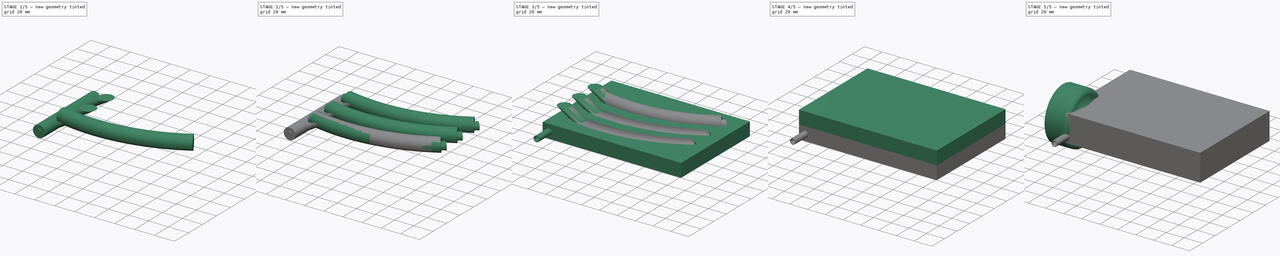
[diagram: build sequence overview — one tinted view per stage of 5, left to right]
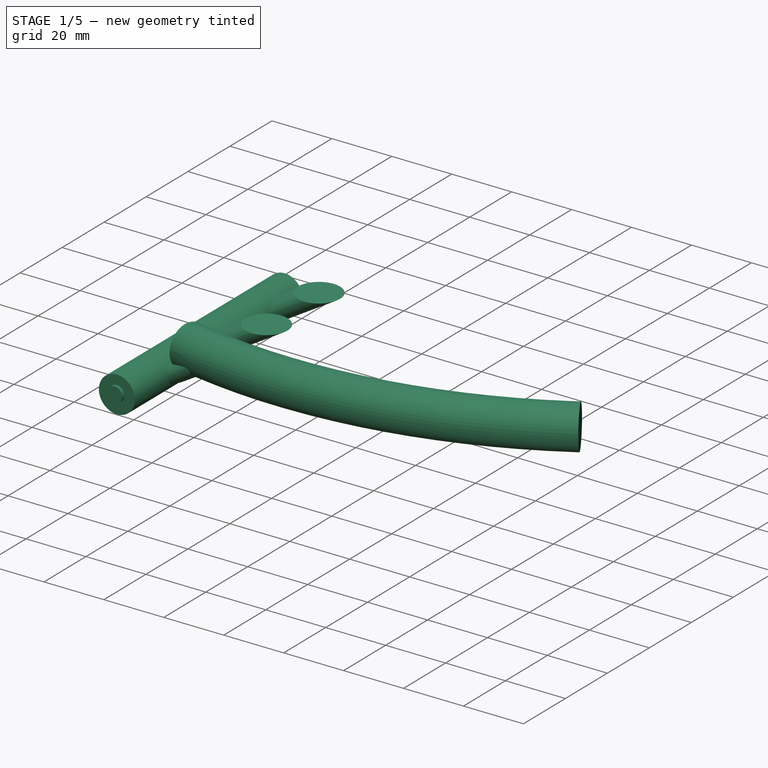
[diagram: stage 1 of 5 — iso view after this stage's code; geometry added in this stage tinted green]
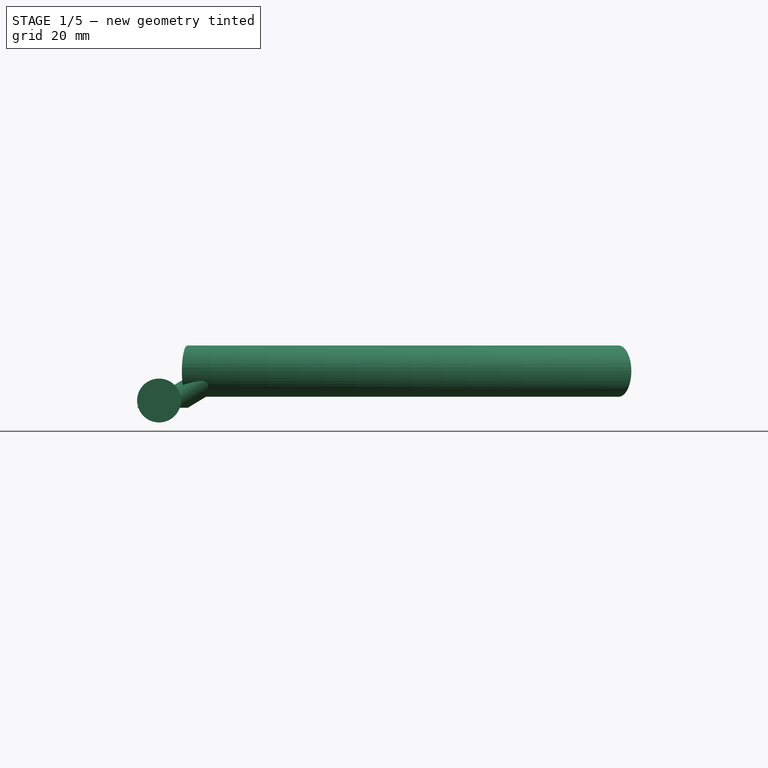
[diagram: stage 1 of 5 — front view after this stage's code; geometry added in this stage tinted green]
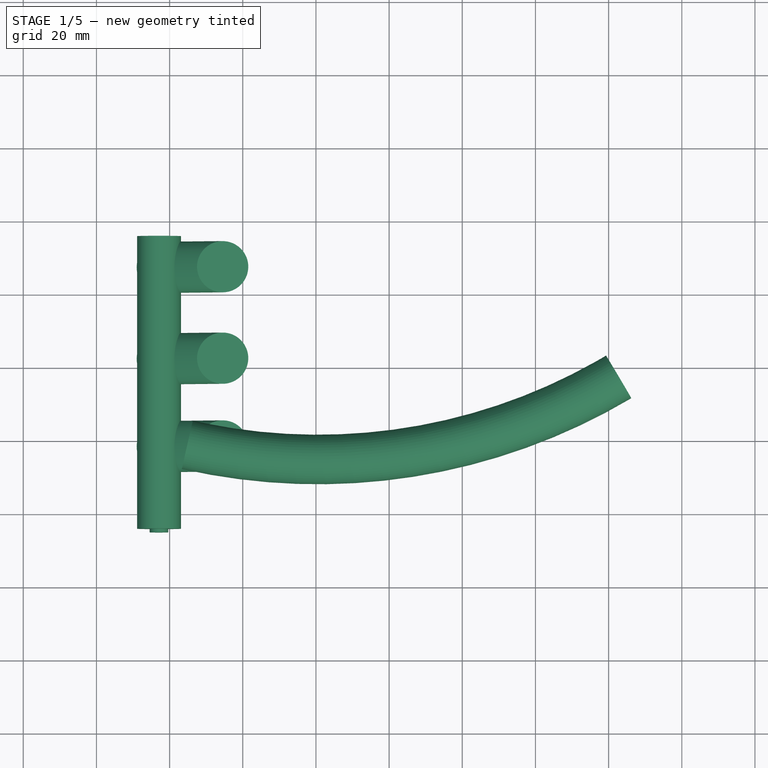
[diagram: stage 1 of 5 — top view after this stage's code; geometry added in this stage tinted green]
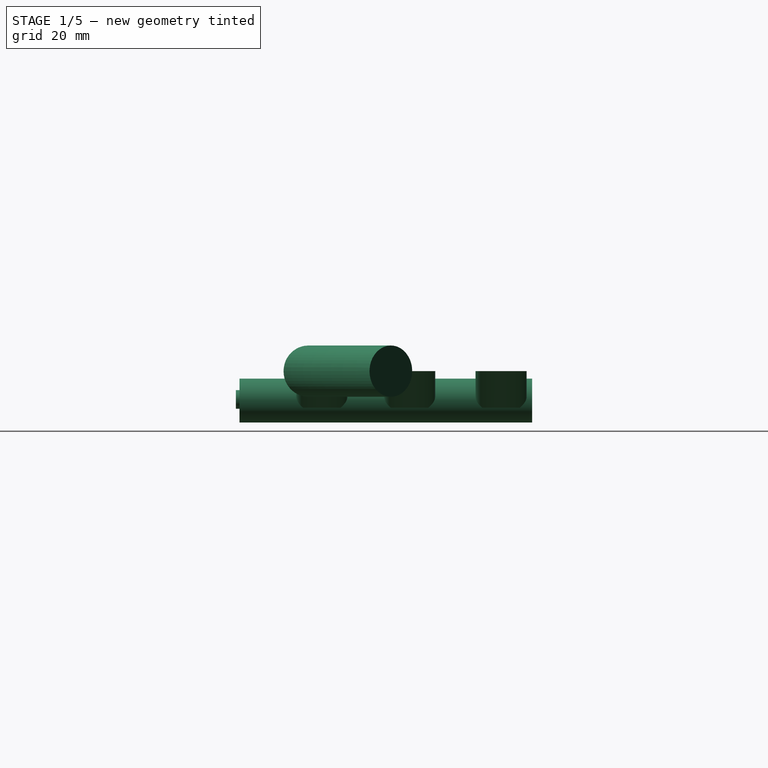
[diagram: stage 1 of 5 — right view after this stage's code; geometry added in this stage tinted green]
FCSTD DOCUMENT  (FreeCAD 0.14R3691 (Git))
Label: MotorTubeMold
License: CC-BY 3.0
LicenseURL: http://creativecommons.org/licenses/by/3.0/
objects: Sketcher::SketchObject×27, Part::Sweep×13, Part::MultiFuse×12, Part::Extrusion×10, Part::Cut×10, Part::Mirroring×3, Part::Fillet×2
note: 77 computed .brp shape members not serialized (recipe doc carries the construction recipe); baked Part::Feature solids carry a one-line shape summary decoded from their .brp

FEATURE [Part::Cut] Cut  label="MotorTube Outer001"
FEATURE [Part::Sweep] Sweep015
  Frenet = false
  Sections = -> [Sketch046]
  Solid = true
  Spine = -> Sketch050 [Edge1]
  Transition = 1
FEATURE [Part::Sweep] Sweep016
  Frenet = false
  Sections = -> [Sketch044]
  Solid = true
  Spine = -> Sketch047 [Edge1]
  Transition = 1
FEATURE [Part::Sweep] Sweep017
  Frenet = false
  Sections = -> [Sketch045]
  Solid = true
  Spine = -> Sketch049 [Edge1]
  Transition = 1
FEATURE [Part::Mirroring] Part__Mirroring  label="Sweep015 (Mirror #1)"
  Base = (0,0,0)
  Normal = (0,0,1)
  Source = -> Sweep015
FEATURE [Part::Mirroring] Part__Mirroring001  label="Sweep016 (Mirror #2)"
  Base = (0,0,0)
  Normal = (0,0,1)
  Source = -> Sweep016
FEATURE [Part::Mirroring] Part__Mirroring002  label="Sweep017 (Mirror #3)"
  Base = (0,0,0)
  Normal = (0,0,1)
  Source = -> Sweep017
FEATURE [Part::Extrusion] Extrude026
  Base = -> Sketch043
  Dir = (0,0,-15)
  Solid = true
FEATURE [Sketcher::SketchObject] Sketch051
  Placement = pos=(0,-25,0) rot=(1,0,0;1.5708rad)
  Support = -> Extrude026 [Face3]
  sketch-geometry (1):
    g0: Circle CenterX=-2.92006 CenterY=-7.73433 CenterZ=0 NormalX=0 NormalY=0 NormalZ=1 Radius=2.54
  constraints (1):
    c: Radius(g0) = 2.54
FEATURE [Part::Extrusion] Extrude027
  Base = -> Sketch051
  Dir = (0,80,0)
  Solid = true
FEATURE [Sketcher::SketchObject] Sketch054
  Placement = pos=(0,-24,0) rot=(-1,0,0;4.71239rad)
  sketch-geometry (1):
    g0: Circle CenterX=-2.88545 CenterY=-8.02909 CenterZ=0 NormalX=0 NormalY=0 NormalZ=1 Radius=6
  constraints (1):
    c: Radius(g0) = 6
FEATURE [Part::Extrusion] Extrude030
  Base = -> Sketch054
  Dir = (0,80,0)
  Solid = true
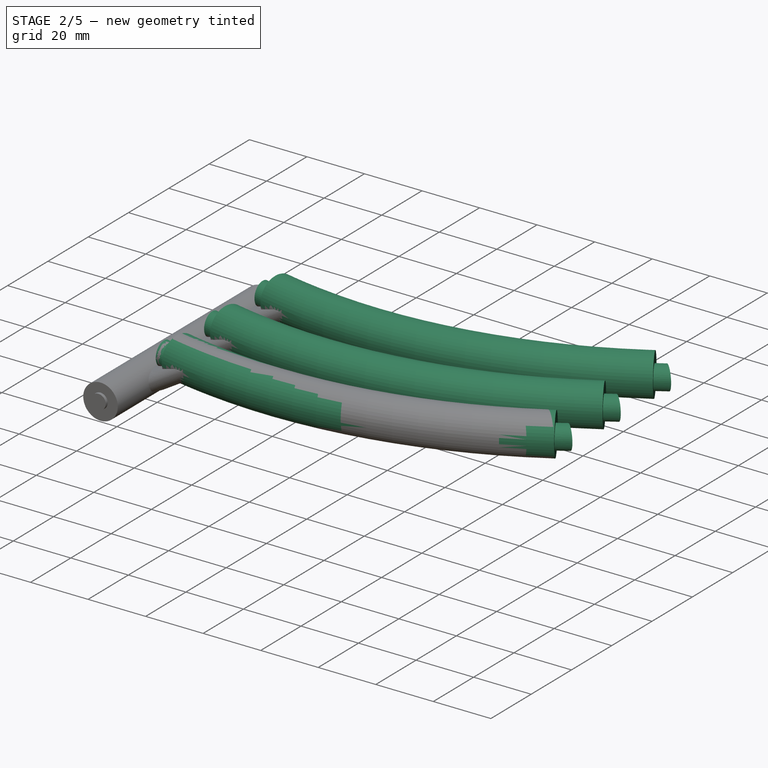
[diagram: stage 2 of 5 — iso view after this stage's code; geometry added in this stage tinted green]
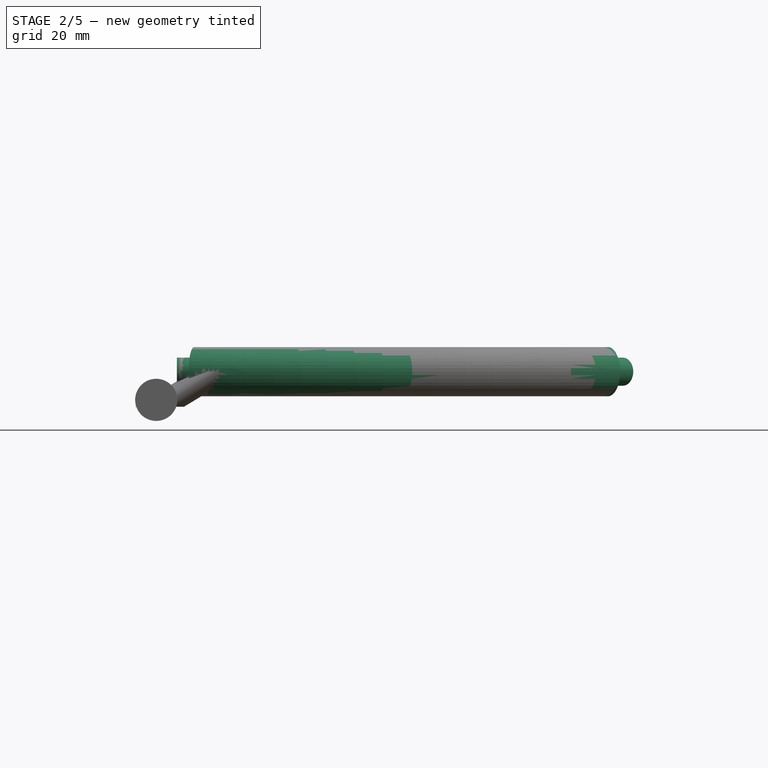
[diagram: stage 2 of 5 — front view after this stage's code; geometry added in this stage tinted green]
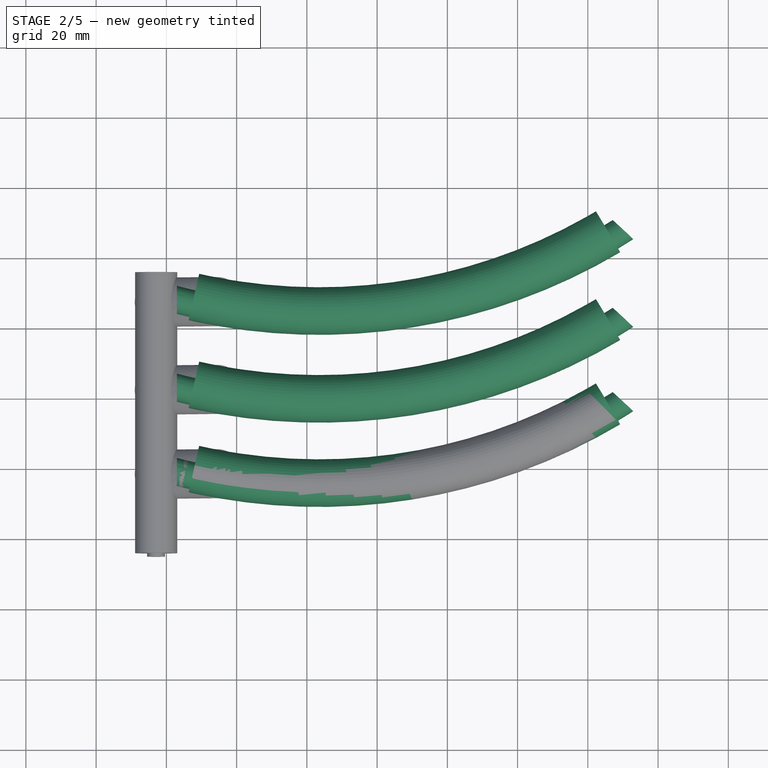
[diagram: stage 2 of 5 — top view after this stage's code; geometry added in this stage tinted green]
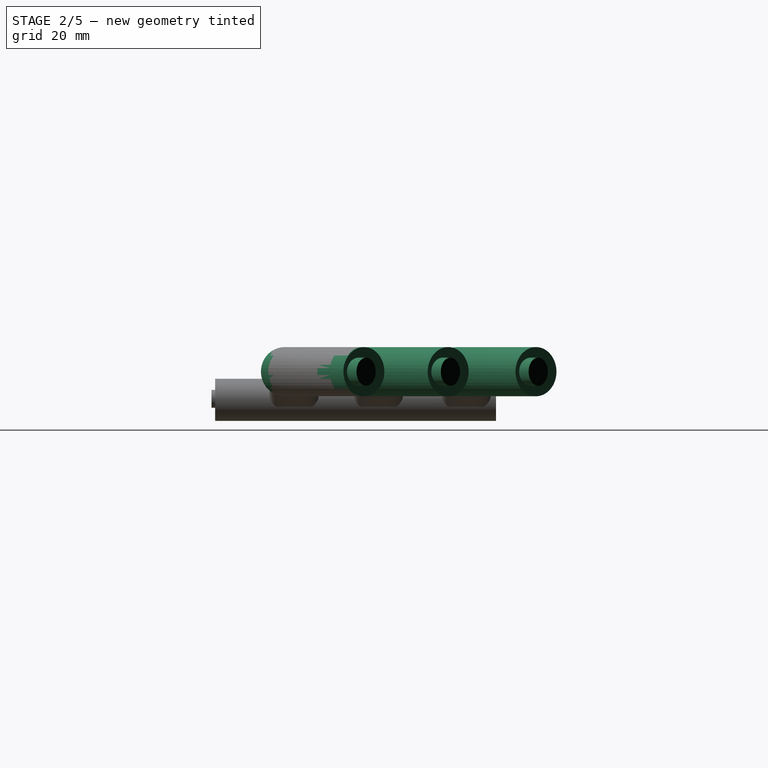
[diagram: stage 2 of 5 — right view after this stage's code; geometry added in this stage tinted green]
FEATURE [Sketcher::SketchObject] Sketch040  label="Motor Tube Outer"
  Placement = pos=(0,0,0) rot=(0.57735,-0.57735,-0.57735;2.0944rad)
  sketch-geometry (1):
    g0: Circle CenterX=0 CenterY=0 CenterZ=0 NormalX=0 NormalY=0 NormalZ=1 Radius=7
  constraints (2):
    c: Coincident(g0,g-1)
    c: Radius(g0) = 7
FEATURE [Sketcher::SketchObject] Sketch041  label="Motor Tube outer cut"
  Placement = pos=(0,0,-15) rot=(0,0,1;0rad)
  sketch-geometry (13):
    g0: ArcOfCircle [constr] CenterX=40.5404 CenterY=155.794 CenterZ=0 NormalX=0 NormalY=0 NormalZ=1 Radius=160.982 StartAngle=4.45782 EndAngle=5.27936
    g1: LineSegment StartX=-8.26898 StartY=21.973 StartZ=0 EndX=10.1216 EndY=21.973 EndZ=0
    g2: LineSegment StartX=10.1216 StartY=21.973 StartZ=0 EndX=-0.555824 EndY=-25 EndZ=0
    g3: LineSegment StartX=-0.555824 StartY=-25 StartZ=0 EndX=-25.4018 EndY=-25 EndZ=0
    g4: LineSegment StartX=-25.4018 StartY=-25 StartZ=0 EndX=-8.26898 EndY=21.973 EndZ=0
    g5: GeomPoint [constr] X=-14.6211 Y=4.55743 Z=0
    g6: GeomPoint [constr] X=4.85783 Y=-1.18386 Z=0
    g7: LineSegment StartX=105.813 StartY=45.8853 StartZ=0 EndX=155.277 EndY=45.8853 EndZ=0
    g8: LineSegment StartX=155.277 StartY=45.8853 StartZ=0 EndX=207.474 EndY=-4.1147 EndZ=0
    g9: LineSegment StartX=207.474 StartY=-4.1147 StartZ=0 EndX=135.507 EndY=-4.1147 EndZ=0
    g10: LineSegment StartX=135.507 StartY=-4.1147 StartZ=0 EndX=105.813 EndY=45.8853 EndZ=0
    g11: GeomPoint [constr] X=156.791 Y=44.4345 Z=0
    g12: GeomPoint [constr] X=122.741 Y=17.3804 Z=0
  constraints (35):
    c: Coincident(g0,g-1)
    c: DistanceY(g-1,g0) = 20
    c: DistanceX(g-2,g0) = 127
    c: DistanceX(g0) = 40.5404
    c: Coincident(g1,g2)
    c: Coincident(g2,g3)
    c: Coincident(g3,g4)
    c: Coincident(g4,g1)
    c: Horizontal(g1)
    c: Horizontal(g3)
    c: Perpendicular(g4,g0)
    c: Perpendicular(g2,g0)
    c: PointOnObject(g5,g4)
    c: PointOnObject(g6,g2)
    c: PointOnObject(g6,g0)
    c: PointOnObject(g5,g0)
    c: Distance(g-1,g6) = 5
    c: Distance(g1) = 18.3906
    c: Coincident(g7,g8)
    c: Coincident(g8,g9)
    c: Coincident(g9,g10)
    c: Coincident(g10,g7)
    c: Horizontal(g7)
    c: Horizontal(g9)
    c: PointOnObject(g11,g8)
    c: PointOnObject(g11,g0)
    c: Distance(g4) = 50
    c: Perpendicular(g10,g0)
    c: Perpendicular(g8,g0)
    c: PointOnObject(g12,g10)
    c: PointOnObject(g12,g0)
    c: Distance(g12,g0) = 5
    c: DistanceY(g10) = 50
    c: DistanceY(g-1,g3) = -25
    c: Distance(g9,g12) = 25
FEATURE [Part::Cut] Cut009  label="MotorTube Outer"
FEATURE [Part::Sweep] Sweep010
  Frenet = false
  Placement = pos=(0,-2,0) rot=(0,0,1;0rad)
  Solid = true
  Spine = -> Sketch [Edge1]
  Transition = 1
FEATURE [Part::Sweep] Sweep
  Frenet = false
  Placement = pos=(0,-2,0) rot=(0,0,1;0rad)
  Solid = true
  Spine = -> Sketch [Edge1]
  Transition = 1
FEATURE [Part::Sweep] Sweep011
  Frenet = false
  Placement = pos=(0,-2,0) rot=(0,0,1;0rad)
  Solid = true
  Spine = -> Sketch [Edge1]
  Transition = 1
FEATURE [Part::Cut] Cut010  label="MotorTube Outer002"
FEATURE [Part::MultiFuse] Fusion013  label="Motor Tube Outer005"
  Placement = pos=(3,1,0) rot=(0,0,1;0rad)
  Shapes = -> [Cut009,Sweep010]
FEATURE [Part::MultiFuse] Fusion014  label="Motor Tube Outer006"
  Placement = pos=(3,50,0) rot=(0,0,1;0rad)
  Shapes = -> [Cut010,Sweep011]
FEATURE [Part::MultiFuse] Fusion015  label="Motor Tube Outer007"
  Placement = pos=(3,25,0) rot=(0,0,1;0rad)
  Shapes = -> [Cut,Sweep]
FEATURE [Part::MultiFuse] Fusion017
  Shapes = -> [Part__Mirroring,Part__Mirroring001,Part__Mirroring002,Fusion013,Fusion015,Fusion014]
FEATURE [Part::MultiFuse] Fusion018  label="Suck Side Positive"
  Shapes = -> [Fusion017,Extrude027]
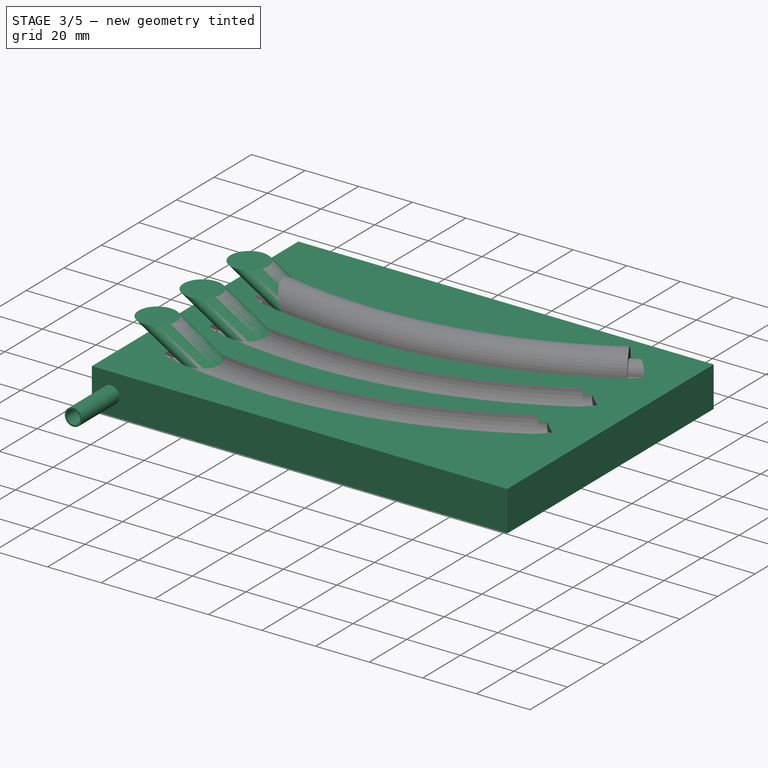
[diagram: stage 3 of 5 — iso view after this stage's code; geometry added in this stage tinted green]
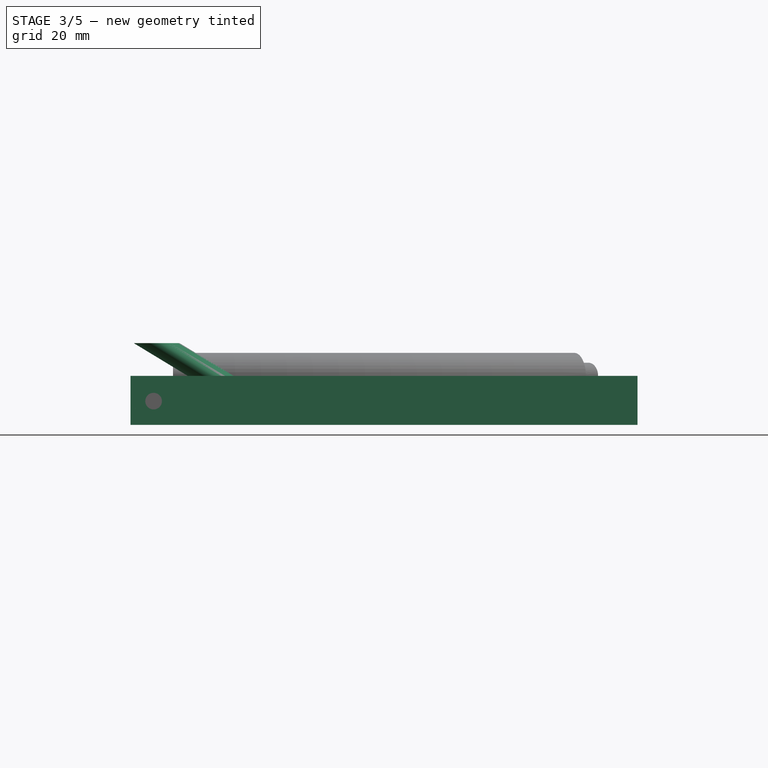
[diagram: stage 3 of 5 — front view after this stage's code; geometry added in this stage tinted green]
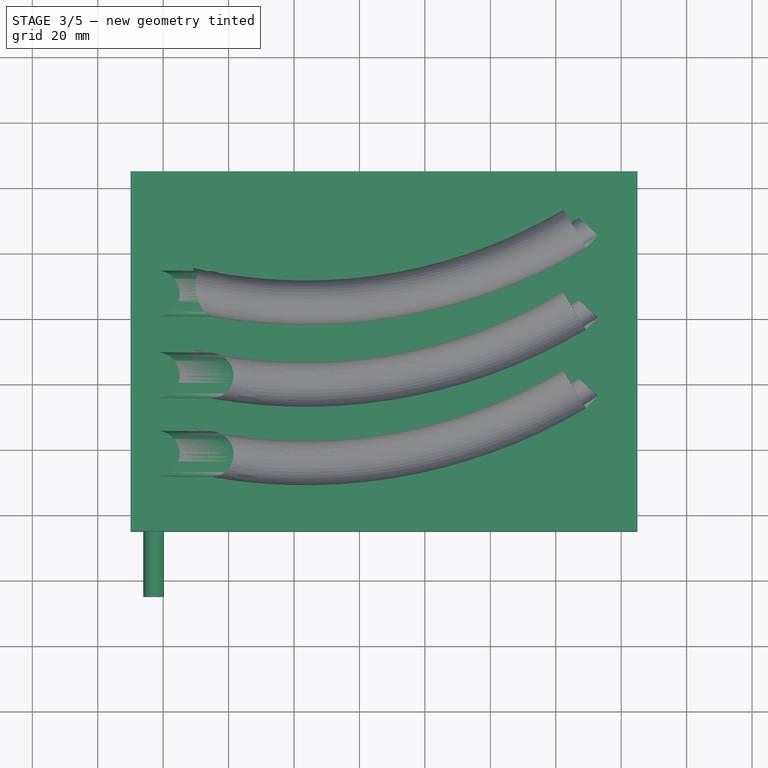
[diagram: stage 3 of 5 — top view after this stage's code; geometry added in this stage tinted green]
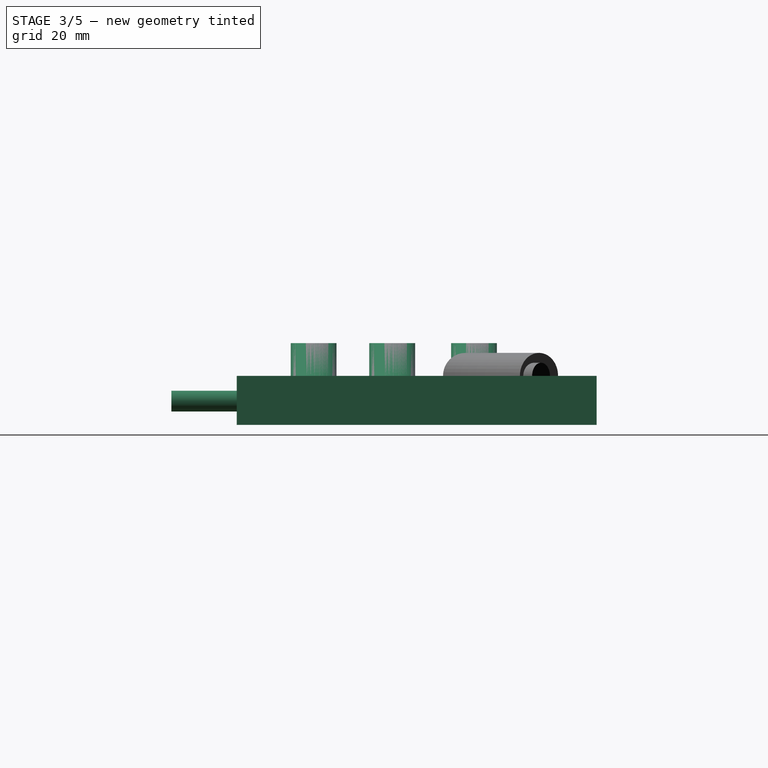
[diagram: stage 3 of 5 — right view after this stage's code; geometry added in this stage tinted green]
FEATURE [Part::MultiFuse] Fusion010  label="Motor Tube Outer004"
  Placement = pos=(3,50,0) rot=(0,0,1;0rad)
  Shapes = -> [Cut010,Sweep011]
FEATURE [Sketcher::SketchObject] Sketch045
  sketch-geometry (1):
    g0: Circle CenterX=14.5 CenterY=22.5 CenterZ=0 NormalX=0 NormalY=0 NormalZ=1 Radius=7
  constraints (3):
    c: Radius(g0) = 7
    c: DistanceX(g0) = 14.5
    c: DistanceY(g0) = 22.5
FEATURE [Sketcher::SketchObject] Sketch046
  sketch-geometry (1):
    g0: Circle CenterX=14.5 CenterY=-1.5 CenterZ=0 NormalX=0 NormalY=0 NormalZ=1 Radius=7
  constraints (3):
    c: Radius(g0) = 7
    c: DistanceX(g0) = 14.5
    c: DistanceY(g0) = -1.5
FEATURE [Sketcher::SketchObject] Sketch047
  Placement = pos=(0,47.5,0) rot=(-1,0,0;4.71239rad)
  sketch-geometry (1):
    g0: LineSegment StartX=14.5 StartY=0 StartZ=0 EndX=-2 EndY=10 EndZ=0
  constraints (4):
    c: PointOnObject(g0,g-1)
    c: DistanceX(g0) = 14.5
    c: DistanceX(g-1,g0) = -2
    c: DistanceY(g-1,g0) = 10
FEATURE [Part::Sweep] Sweep012
  Frenet = false
  Sections = -> [Sketch044]
  Solid = true
  Spine = -> Sketch047 [Edge1]
  Transition = 1
FEATURE [Sketcher::SketchObject] Sketch049
  Placement = pos=(0,22.5,0) rot=(1,0,0;1.5708rad)
  sketch-geometry (1):
    g0: LineSegment StartX=14.5 StartY=0 StartZ=0 EndX=-2 EndY=10 EndZ=0
  constraints (4):
    c: PointOnObject(g0,g-1)
    c: DistanceX(g0) = 14.5
    c: DistanceX(g-1,g0) = -2
    c: DistanceY(g-1,g0) = 10
FEATURE [Sketcher::SketchObject] Sketch050
  Placement = pos=(0,-1.5,0) rot=(1,0,0;1.5708rad)
  sketch-geometry (1):
    g0: LineSegment StartX=14.5 StartY=0 StartZ=0 EndX=-2 EndY=10 EndZ=0
  constraints (4):
    c: PointOnObject(g0,g-1)
    c: DistanceX(g0) = 14.5
    c: DistanceX(g-1,g0) = -2
    c: DistanceY(g-1,g0) = 10
FEATURE [Part::Sweep] Sweep013
  Frenet = false
  Sections = -> [Sketch046]
  Solid = true
  Spine = -> Sketch050 [Edge1]
  Transition = 1
FEATURE [Part::Sweep] Sweep014
  Frenet = false
  Sections = -> [Sketch045]
  Solid = true
  Spine = -> Sketch049 [Edge1]
  Transition = 1
FEATURE [Part::Cut] Cut012  label="Bottom - Suck"
  Base = -> Extrude026
  Tool = -> Fusion018
FEATURE [Sketcher::SketchObject] Sketch052
  Placement = pos=(0,-25,0) rot=(1,0,0;1.5708rad)
  Support = -> Extrude026 [Face3]
  sketch-geometry (1):
    g0: Circle CenterX=-2.92006 CenterY=-7.73433 CenterZ=0 NormalX=0 NormalY=0 NormalZ=1 Radius=2.54
  constraints (1):
    c: Radius(g0) = 2.54
FEATURE [Part::Extrusion] Extrude028
  Base = -> Sketch052
  Dir = (0,-20,0)
  Solid = true
FEATURE [Sketcher::SketchObject] Sketch053
  Placement = pos=(0,-25,0) rot=(1,0,0;1.5708rad)
  Support = -> Extrude026 [Face3]
  sketch-geometry (1):
    g0: Circle CenterX=-2.92006 CenterY=-7.73433 CenterZ=0 NormalX=0 NormalY=0 NormalZ=1 Radius=3.175
  constraints (1):
    c: Radius(g0) = 3.175
FEATURE [Part::Extrusion] Extrude029
  Base = -> Sketch053
  Dir = (0,-20,0)
  Solid = true
FEATURE [Part::Cut] Cut013
  Base = -> Extrude029
  Tool = -> Extrude028
FEATURE [Part::Cut] Cut014
  Base = -> Cut012
  Tool = -> Extrude030
FEATURE [Part::MultiFuse] Fusion019  label="Bottom - Suck001"
  Shapes = -> [Cut013,Cut014]
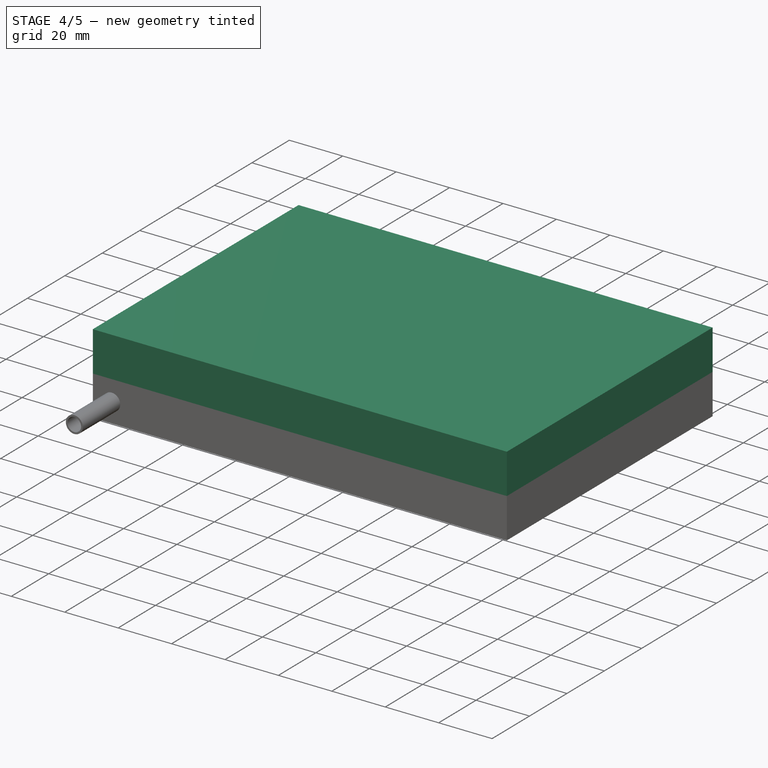
[diagram: stage 4 of 5 — iso view after this stage's code; geometry added in this stage tinted green]
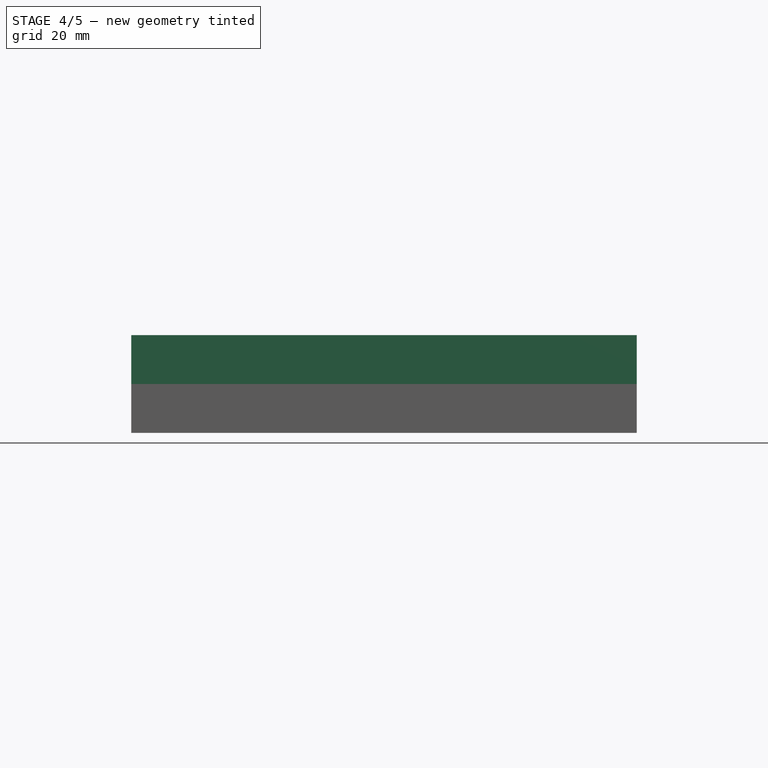
[diagram: stage 4 of 5 — front view after this stage's code; geometry added in this stage tinted green]
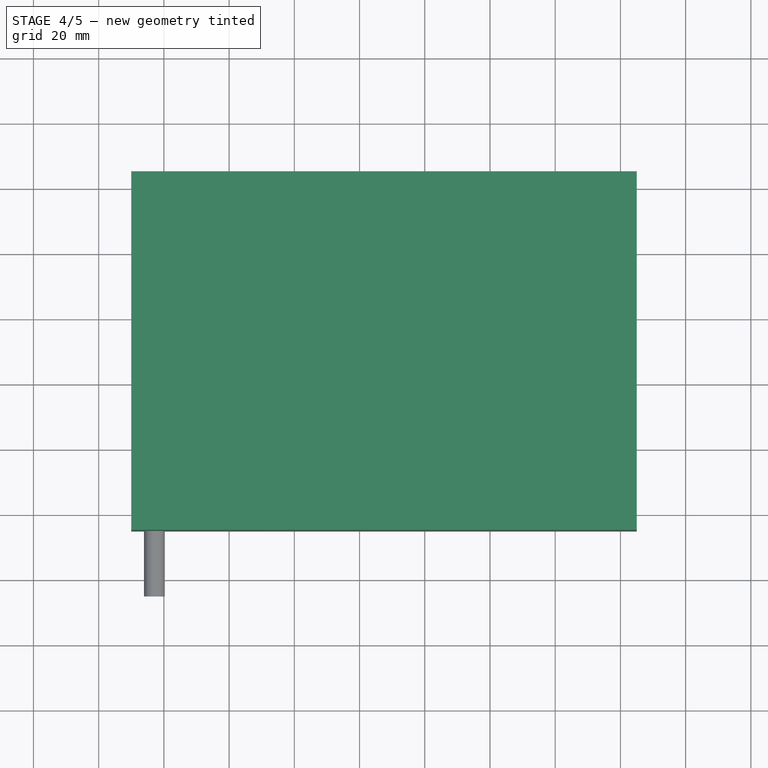
[diagram: stage 4 of 5 — top view after this stage's code; geometry added in this stage tinted green]
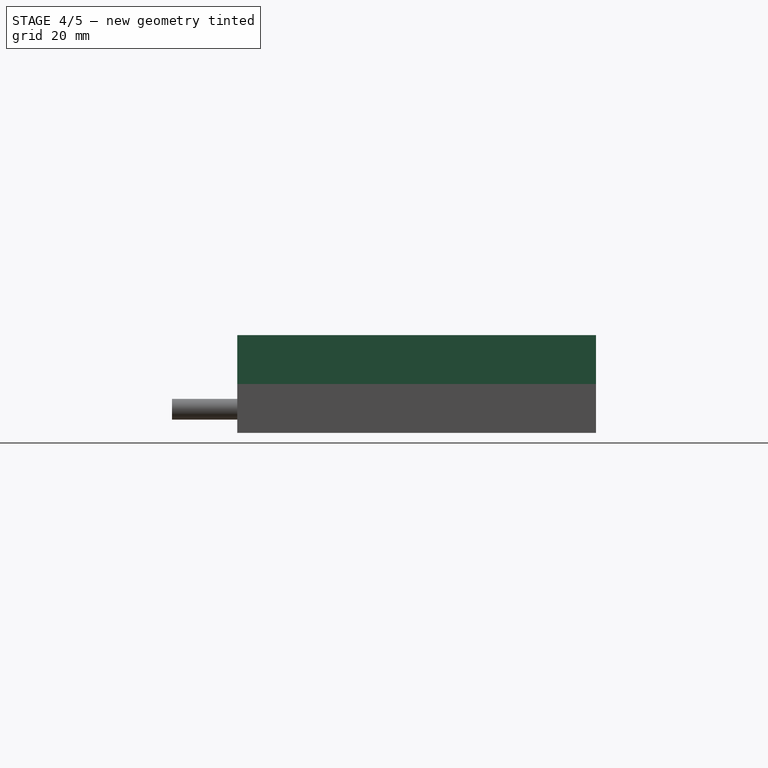
[diagram: stage 4 of 5 — right view after this stage's code; geometry added in this stage tinted green]
FEATURE [Part::Sweep] Sweep007  label="Motor 2"
  Frenet = false
  Sections = -> [Sketch035]
  Solid = true
  Spine = -> Sketch [Edge1]
  Transition = 1
FEATURE [Part::Extrusion] Extrude024
  Base = -> Sketch039
  Dir = (0,0,20)
  Solid = true
FEATURE [Part::Cut] Cut008  label="Motor two"
  Base = -> Sweep007
  Placement = pos=(0,4,0) rot=(0,0,1;0rad)
  Tool = -> Extrude024
FEATURE [Sketcher::SketchObject] Sketch042  label="Top Sketch"
  sketch-geometry (4):
    g0: LineSegment StartX=-10 StartY=85 StartZ=0 EndX=145 EndY=85 EndZ=0
    g1: LineSegment StartX=145 StartY=85 StartZ=0 EndX=145 EndY=-25 EndZ=0
    g2: LineSegment StartX=145 StartY=-25 StartZ=0 EndX=-10 EndY=-25 EndZ=0
    g3: LineSegment StartX=-10 StartY=-25 StartZ=0 EndX=-10 EndY=85 EndZ=0
  constraints (12):
    c: Coincident(g0,g1)
    c: Coincident(g1,g2)
    c: Coincident(g2,g3)
    c: Coincident(g3,g0)
    c: Horizontal(g0)
    c: Horizontal(g2)
    c: Vertical(g1)
    c: Vertical(g3)
    c: DistanceX(g1) = 145
    c: DistanceY(g1) = -25
    c: DistanceX(g0) = -10
    c: DistanceY(g0) = 85
FEATURE [Sketcher::SketchObject] Sketch043  label="Bottom Sketch"
  sketch-geometry (4):
    g0: LineSegment StartX=-10 StartY=85 StartZ=0 EndX=145 EndY=85 EndZ=0
    g1: LineSegment StartX=145 StartY=85 StartZ=0 EndX=145 EndY=-25 EndZ=0
    g2: LineSegment StartX=145 StartY=-25 StartZ=0 EndX=-10 EndY=-25 EndZ=0
    g3: LineSegment StartX=-10 StartY=-25 StartZ=0 EndX=-10 EndY=85 EndZ=0
  constraints (12):
    c: Coincident(g0,g1)
    c: Coincident(g1,g2)
    c: Coincident(g2,g3)
    c: Coincident(g3,g0)
    c: Horizontal(g0)
    c: Horizontal(g2)
    c: Vertical(g1)
    c: Vertical(g3)
    c: DistanceX(g1) = 145
    c: DistanceY(g1) = -25
    c: DistanceX(g0) = -10
    c: DistanceY(g0) = 85
FEATURE [Sketcher::SketchObject] Sketch044
  sketch-geometry (1):
    g0: Circle CenterX=14.5 CenterY=47.5 CenterZ=0 NormalX=0 NormalY=0 NormalZ=1 Radius=7
  constraints (3):
    c: Radius(g0) = 7
    c: DistanceX(g0) = 14.5
    c: DistanceY(g0) = 47.5
FEATURE [Part::MultiFuse] Fusion009  label="Motor Tube Outer002"
  Placement = pos=(3,1,0) rot=(0,0,1;0rad)
  Shapes = -> [Cut009,Sweep010]
FEATURE [Part::MultiFuse] Fusion  label="Motor Tube Outer003"
  Placement = pos=(3,25,0) rot=(0,0,1;0rad)
  Shapes = -> [Cut,Sweep]
FEATURE [Part::Extrusion] Extrude
  Base = -> Sketch042
  Dir = (0,0,15)
  Solid = true
FEATURE [Sketcher::SketchObject] Sketch048  label="Sprue"
  Placement = pos=(-10,0,0) rot=(0.57735,-0.57735,-0.57735;2.0944rad)
  Support = -> Extrude [Face4]
  sketch-geometry (4):
    g0: ArcOfCircle CenterX=-59.7297 CenterY=7.81384 CenterZ=0 NormalX=0 NormalY=0 NormalZ=1 Radius=5.70811 StartAngle=1.5708 EndAngle=4.71239
    g1: ArcOfCircle CenterX=12.8658 CenterY=7.81384 CenterZ=0 NormalX=0 NormalY=0 NormalZ=1 Radius=5.70811 StartAngle=4.71239 EndAngle=7.85398
    g2: LineSegment StartX=-59.7297 StartY=2.10573 StartZ=0 EndX=12.8658 EndY=2.10573 EndZ=0
    g3: LineSegment StartX=-59.7297 StartY=13.5219 StartZ=0 EndX=12.8658 EndY=13.5219 EndZ=0
  constraints (10):
    c: Tangent(g0,g2)
    c: Tangent(g0,g3)
    c: Tangent(g1,g2)
    c: Tangent(g1,g3)
    c: Coincident(g0,g3)
    c: Coincident(g0,g2)
    c: Coincident(g2,g1)
    c: Coincident(g3,g1)
    c: Horizontal(g2)
    c: Equal(g0,g1)
FEATURE [Part::Extrusion] Extrude025  label="Sprue001"
  Base = -> Sketch048
  Dir = (10,0,0)
  Solid = true
FEATURE [Part::MultiFuse] Fusion011  label="Motor Tubes and Mold Tubes"
  Shapes = -> [Sweep014,Sweep013,Sweep012,Fusion010,Fusion,Fusion009]
FEATURE [Part::MultiFuse] Fusion016  label="Positive Input Side"
  Shapes = -> [Fusion011,Extrude025]
FEATURE [Part::Cut] Cut011  label="Top - Pour"
  Base = -> Extrude
  Tool = -> Fusion016
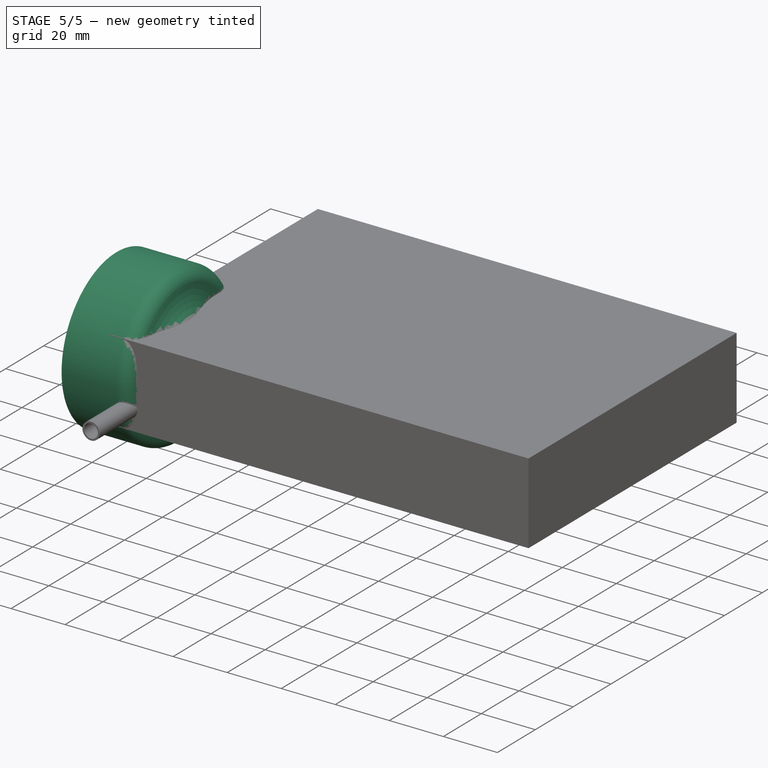
[diagram: stage 5 of 5 — iso view after this stage's code; geometry added in this stage tinted green]
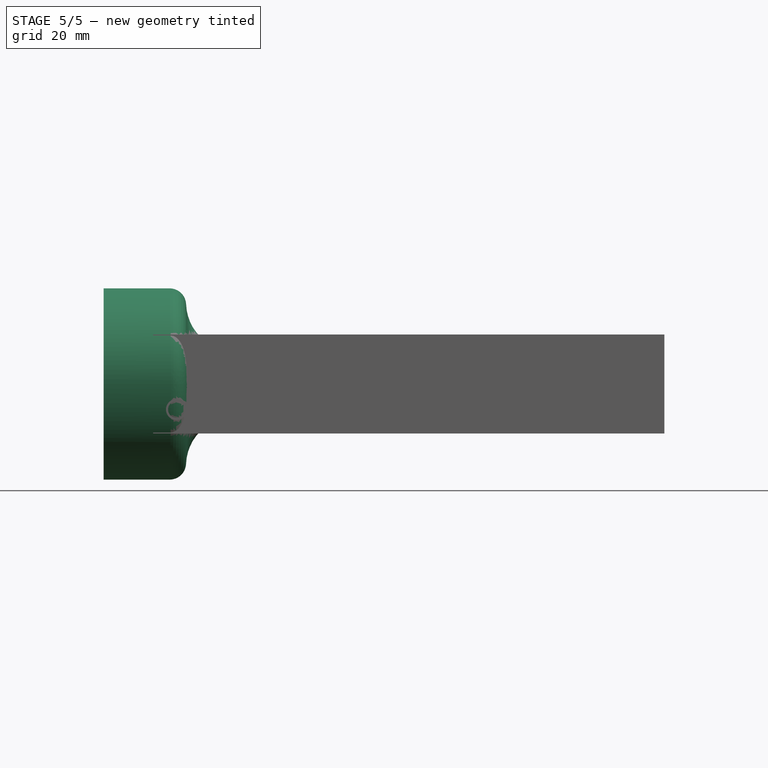
[diagram: stage 5 of 5 — front view after this stage's code; geometry added in this stage tinted green]
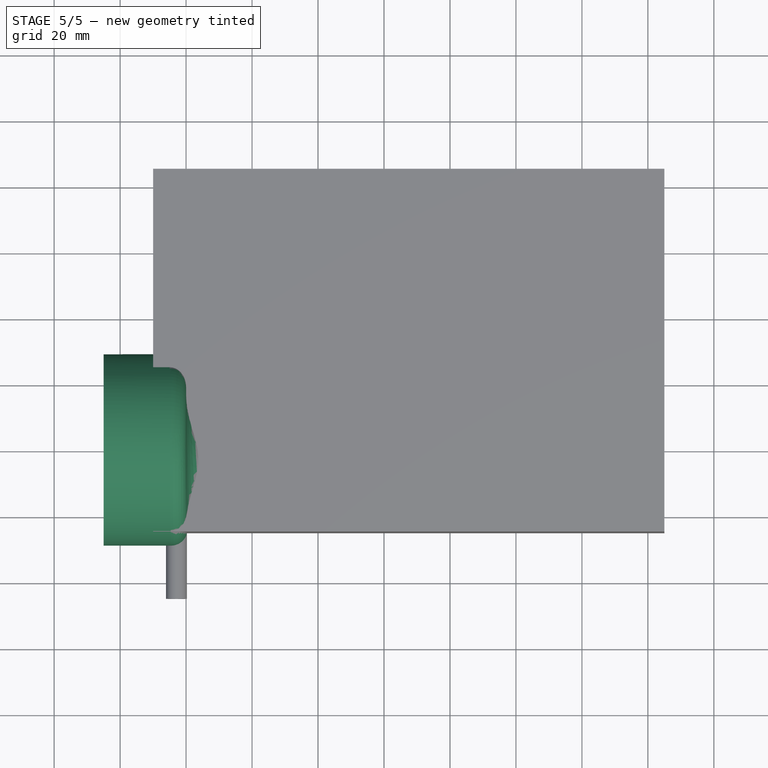
[diagram: stage 5 of 5 — top view after this stage's code; geometry added in this stage tinted green]
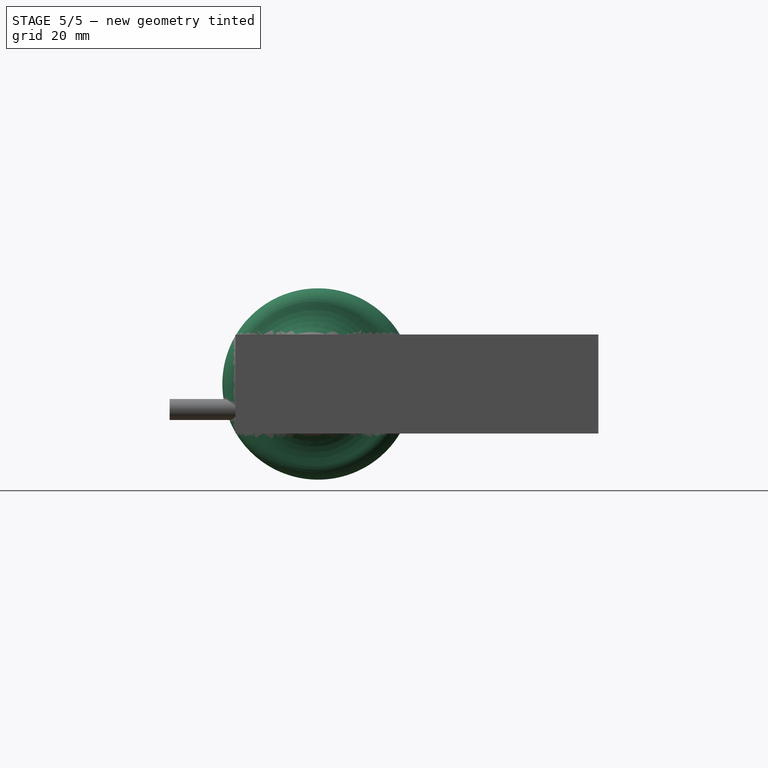
[diagram: stage 5 of 5 — right view after this stage's code; geometry added in this stage tinted green]
FEATURE [Sketcher::SketchObject] Sketch  label="Curve"
  sketch-geometry (1):
    g0: ArcOfCircle CenterX=40.5404 CenterY=155.794 CenterZ=0 NormalX=0 NormalY=0 NormalZ=1 Radius=160.982 StartAngle=4.45782 EndAngle=5.27936
  constraints (4):
    c: Coincident(g0,g-1)
    c: DistanceY(g-1,g0) = 20
    c: DistanceX(g-2,g0) = 127
    c: DistanceX(g0) = 40.5404
FEATURE [Sketcher::SketchObject] Sketch001  label="Base Diameter"
  Placement = pos=(0,0,0) rot=(0.57735,-0.57735,-0.57735;2.0944rad)
  sketch-geometry (1):
    g0: Circle CenterX=0 CenterY=0 CenterZ=0 NormalX=0 NormalY=0 NormalZ=1 Radius=38
  constraints (2):
    c: Coincident(g0,g-1)
    c: Radius(g0) = 38
FEATURE [Sketcher::SketchObject] Sketch002  label="3.5 Inch Circumference"
  Placement = pos=(0,0,0) rot=(0.57735,-0.57735,-0.57735;2.0944rad)
  sketch-geometry (1):
    g0: Circle CenterX=0 CenterY=0 CenterZ=0 NormalX=0 NormalY=0 NormalZ=1 Radius=14
  constraints (2):
    c: Coincident(g0,g-1)
    c: Radius(g0) = 14
FEATURE [Sketcher::SketchObject] Sketch003  label="4 inch circumference"
  Placement = pos=(0,0,0) rot=(-0.57735,0.57735,0.57735;4.18879rad)
  sketch-geometry (1):
    g0: Circle CenterX=0 CenterY=0 CenterZ=0 NormalX=0 NormalY=0 NormalZ=1 Radius=16.25
  constraints (2):
    c: Coincident(g0,g-1)
    c: Radius(g0) = 16.25
FEATURE [Sketcher::SketchObject] Sketch004  label="Short Curve"
  sketch-geometry (1):
    g0: ArcOfCircle CenterX=40.5404 CenterY=155.52 CenterZ=0 NormalX=0 NormalY=0 NormalZ=1 Radius=160.751 StartAngle=4.54022 EndAngle=5.28027
  constraints (5):
    c: DistanceX(g0) = 40.5404
    c: DistanceY(g-1,g0) = 20
    c: DistanceY(g-1,g0) = 155.52
    c: DistanceX(g-2,g0) = 127
    c: DistanceX(g-2,g0) = 13
FEATURE [Part::Fillet] Fillet003
  Edges = 1 edges r=15: [Edge2]
FEATURE [Part::Fillet] Fillet004  label="RoughForm Test"
  Base = -> Fillet003
  Edges = 1 edges r=5: [Edge6]
FEATURE [Sketcher::SketchObject] Sketch030  label="Wire Diameter"
  Placement = pos=(0,0,0) rot=(0.57735,-0.57735,-0.57735;2.0944rad)
  sketch-geometry (1):
    g0: Circle CenterX=0 CenterY=0 CenterZ=0 NormalX=0 NormalY=0 NormalZ=1 Radius=3
  constraints (2):
    c: Coincident(g0,g-1)
    c: Radius(g0) = 3
FEATURE [Sketcher::SketchObject] Sketch031  label="Motor Diameter"
  Placement = pos=(0,0,0) rot=(0.57735,-0.57735,-0.57735;2.0944rad)
  sketch-geometry (1):
    g0: Circle CenterX=0 CenterY=0 CenterZ=0 NormalX=0 NormalY=0 NormalZ=1 Radius=5
  constraints (1):
    c: Radius(g0) = 5
FEATURE [Part::Sweep] Sweep001  label="WireTube"
  Frenet = false
  Sections = -> [Sketch030]
  Solid = true
  Spine = -> Sketch [Edge1]
  Transition = 1
FEATURE [Sketcher::SketchObject] Sketch033  label="Motor Diameter001"
  Placement = pos=(0,0,0) rot=(0.57735,-0.57735,-0.57735;2.0944rad)
  sketch-geometry (1):
    g0: Circle CenterX=0 CenterY=0 CenterZ=0 NormalX=0 NormalY=0 NormalZ=1 Radius=5
  constraints (2):
    c: Coincident(g0,g-1)
    c: Radius(g0) = 5
FEATURE [Sketcher::SketchObject] Sketch035  label="Motor Diameter002"
  Placement = pos=(0,0,0) rot=(0.57735,-0.57735,-0.57735;2.0944rad)
  sketch-geometry (1):
    g0: Circle CenterX=0 CenterY=0 CenterZ=0 NormalX=0 NormalY=0 NormalZ=1 Radius=5
  constraints (2):
    c: Coincident(g0,g-1)
    c: Radius(g0) = 5
FEATURE [Part::Sweep] Sweep006  label="Motor 1"
  Frenet = false
  Sections = -> [Sketch033]
  Solid = true
  Spine = -> Sketch [Edge1]
  Transition = 1
FEATURE [Sketcher::SketchObject] Sketch037  label="Motor 0 Cut"
  Placement = pos=(0,0,-10) rot=(0,0,1;0rad)
  sketch-geometry (12):
    g0: ArcOfCircle [constr] CenterX=40.5404 CenterY=155.794 CenterZ=0 NormalX=0 NormalY=0 NormalZ=1 Radius=160.982 StartAngle=4.45782 EndAngle=5.27936
    g1: LineSegment StartX=-12.9827 StartY=13.9298 StartZ=0 EndX=10.0676 EndY=9.14019 EndZ=0
    g2: LineSegment StartX=10.0676 StartY=9.14019 StartZ=0 EndX=5.91182 EndY=-10.8598 EndZ=0
    g3: LineSegment StartX=5.91182 StartY=-10.8598 StartZ=0 EndX=-17.1385 EndY=-6.07023 EndZ=0
    g4: LineSegment StartX=-17.1385 StartY=-6.07023 StartZ=0 EndX=-12.9827 EndY=13.9298 EndZ=0
    g5: LineSegment StartX=35.2009 StartY=32.2366 StartZ=0 EndX=147.897 EndY=32.2366 EndZ=0
    g6: LineSegment StartX=147.897 StartY=32.2366 StartZ=0 EndX=145.69 EndY=-18.8314 EndZ=0
    g7: LineSegment StartX=145.69 StartY=-18.8314 StartZ=0 EndX=32.994 EndY=-18.8314 EndZ=0
    g8: LineSegment StartX=32.994 StartY=-18.8314 StartZ=0 EndX=35.2009 EndY=32.2366 EndZ=0
    g9: GeomPoint [constr] X=7.78984 Y=-1.82166 Z=0
    g10: GeomPoint [constr] X=33.5901 Y=-5.03818 Z=0
    g11: GeomPoint [constr] X=-14.9084 Y=4.66252 Z=0
  constraints (32):
    c: Coincident(g0,g-1)
    c: DistanceY(g-1,g0) = 20
    c: DistanceX(g-2,g0) = 127
    c: DistanceX(g0) = 40.5404
    c: Coincident(g1,g2)
    c: Coincident(g2,g3)
    c: Coincident(g3,g4)
    c: Coincident(g4,g1)
    c: Perpendicular(g2,g0)
    c: Parallel(g4,g2)
    c: DistanceY(g2) = -20
    c: Parallel(g3,g1)
    c: Perpendicular(g3,g2)
    c: Coincident(g5,g6)
    c: Coincident(g6,g7)
    c: Coincident(g7,g8)
    c: Coincident(g8,g5)
    c: Perpendicular(g8,g0)
    c: Parallel(g6,g8)
    c: Distance(g8) = 51.1157
    c: Distance(g5) = 112.696
    c: DistanceY(g-1,g5) = 32.2366
    c: Horizontal(g7)
    c: Horizontal(g5)
    c: PointOnObject(g9,g2)
    c: PointOnObject(g9,g0)
    c: PointOnObject(g10,g8)
    c: PointOnObject(g10,g0)
    c: Distance(g10,g9) = 26
    c: PointOnObject(g11,g4)
    c: PointOnObject(g11,g0)
    c: Distance(g-1,g9) = 8
FEATURE [Part::Sweep] Sweep008  label="Motor 0"
  Frenet = false
  Sections = -> [Sketch031]
  Solid = true
  Spine = -> Sketch [Edge1]
  Transition = 1
FEATURE [Sketcher::SketchObject] Sketch038  label="Motor 1 Cut"
  Placement = pos=(0,0,-10) rot=(0,0,1;0rad)
  sketch-geometry (11):
    g0: ArcOfCircle [constr] CenterX=40.5404 CenterY=155.794 CenterZ=0 NormalX=0 NormalY=0 NormalZ=1 Radius=160.982 StartAngle=4.45782 EndAngle=5.27936
    g1: LineSegment StartX=-30.8507 StartY=26.9284 StartZ=0 EndX=49.1493 EndY=26.9284 EndZ=0
    g2: LineSegment StartX=49.1493 StartY=26.9284 StartZ=0 EndX=52.4895 EndY=-23.0716 EndZ=0
    g3: LineSegment StartX=52.4895 StartY=-23.0716 StartZ=0 EndX=-27.5105 EndY=-23.0716 EndZ=0
    g4: LineSegment StartX=-27.5105 StartY=-23.0716 StartZ=0 EndX=-30.8507 EndY=26.9284 EndZ=0
    g5: LineSegment StartX=69.2608 StartY=32.2366 StartZ=0 EndX=159.261 EndY=32.2366 EndZ=0
    g6: LineSegment StartX=159.261 StartY=32.2366 StartZ=0 EndX=170.834 EndY=-17.5517 EndZ=0
    g7: LineSegment StartX=170.834 StartY=-17.5517 StartZ=0 EndX=80.834 EndY=-17.5517 EndZ=0
    g8: LineSegment StartX=80.834 StartY=-17.5517 StartZ=0 EndX=69.2608 EndY=32.2366 EndZ=0
    g9: GeomPoint [constr] X=51.2709 Y=-4.83026 Z=0
    g10: GeomPoint [constr] X=76.9884 Y=-1.0079 Z=0
  constraints (32):
    c: Coincident(g0,g-1)
    c: DistanceY(g-1,g0) = 20
    c: DistanceX(g-2,g0) = 127
    c: DistanceX(g0) = 40.5404
    c: Coincident(g1,g2)
    c: Coincident(g2,g3)
    c: Coincident(g3,g4)
    c: Coincident(g4,g1)
    c: Perpendicular(g2,g0)
    c: Parallel(g4,g2)
    c: DistanceY(g2) = -50
    c: Coincident(g5,g6)
    c: Coincident(g6,g7)
    c: Coincident(g7,g8)
    c: Coincident(g8,g5)
    c: Perpendicular(g8,g0)
    c: Parallel(g6,g8)
    c: Distance(g8) = 51.1157
    c: Distance(g5) = 90
    c: DistanceY(g-1,g5) = 32.2366
    c: Horizontal(g7)
    c: Horizontal(g5)
    c: Horizontal(g3)
    c: Horizontal(g1)
    c: PointOnObject(g9,g2)
    c: PointOnObject(g9,g0)
    c: PointOnObject(g10,g8)
    c: PointOnObject(g10,g0)
    c: Distance(g9,g10) = 26
    c: DistanceX(g1) = 80
    c: DistanceX(g1) = -30.8507
    c: DistanceY(g1) = 26.9284
FEATURE [Sketcher::SketchObject] Sketch039  label="Motor 2 Cut"
  Placement = pos=(0,0,-10) rot=(0,0,1;0rad)
  sketch-geometry (11):
    g0: ArcOfCircle [constr] CenterX=40.5404 CenterY=155.794 CenterZ=0 NormalX=0 NormalY=0 NormalZ=1 Radius=160.982 StartAngle=4.45782 EndAngle=5.27936
    g1: LineSegment StartX=-31.5401 StartY=26.9828 StartZ=0 EndX=88.4599 EndY=26.9828 EndZ=0
    g2: LineSegment StartX=88.4599 StartY=26.9828 StartZ=0 EndX=107.061 EndY=-23.0172 EndZ=0
    g3: LineSegment StartX=107.061 StartY=-23.0172 StartZ=0 EndX=-12.9394 EndY=-23.0172 EndZ=0
    g4: LineSegment StartX=-12.9394 StartY=-23.0172 StartZ=0 EndX=-31.5401 EndY=26.9828 EndZ=0
    g5: LineSegment StartX=113.661 StartY=27.4427 StartZ=0 EndX=203.661 EndY=27.4427 EndZ=0
    g6: LineSegment StartX=203.661 StartY=27.4427 StartZ=0 EndX=228.963 EndY=-16.9713 EndZ=0
    g7: LineSegment StartX=228.963 StartY=-16.9713 StartZ=0 EndX=138.963 EndY=-16.9713 EndZ=0
    g8: LineSegment StartX=138.963 StartY=-16.9713 StartZ=0 EndX=113.661 EndY=27.4427 EndZ=0
    g9: GeomPoint [constr] X=96.6698 Y=4.91399 Z=0
    g10: GeomPoint [constr] X=120.227 Y=15.9176 Z=0
  constraints (32):
    c: Coincident(g0,g-1)
    c: DistanceY(g-1,g0) = 20
    c: DistanceX(g-2,g0) = 127
    c: DistanceX(g0) = 40.5404
    c: Coincident(g1,g2)
    c: Coincident(g2,g3)
    c: Coincident(g3,g4)
    c: Coincident(g4,g1)
    c: Perpendicular(g2,g0)
    c: Parallel(g4,g2)
    c: DistanceY(g2) = -50
    c: Coincident(g5,g6)
    c: Coincident(g6,g7)
    c: Coincident(g7,g8)
    c: Coincident(g8,g5)
    c: Perpendicular(g8,g0)
    c: Parallel(g6,g8)
    c: Distance(g8) = 51.1157
    c: Distance(g5) = 90
    c: Horizontal(g7)
    c: Horizontal(g5)
    c: Horizontal(g3)
    c: Horizontal(g1)
    c: PointOnObject(g9,g2)
    c: PointOnObject(g9,g0)
    c: PointOnObject(g10,g8)
    c: PointOnObject(g10,g0)
    c: DistanceX(g1) = 120
    c: DistanceX(g1) = -31.5401
    c: DistanceY(g1) = 26.9828
    c: Distance(g9,g10) = 26
    c: DistanceY(g-1,g5) = 27.4427
FEATURE [Part::Extrusion] Extrude022
  Base = -> Sketch037
  Dir = (0,0,20)
  Solid = true
FEATURE [Part::Extrusion] Extrude023
  Base = -> Sketch038
  Dir = (0,0,20)
  Solid = true
FEATURE [Part::Cut] Cut006  label="Motor zero"
  Base = -> Sweep008
  Placement = pos=(0,4,0) rot=(0,0,1;0rad)
  Tool = -> Extrude022
FEATURE [Part::Cut] Cut007  label="motor one"
  Base = -> Sweep006
  Placement = pos=(0,4,0) rot=(0,0,1;0rad)
  Tool = -> Extrude023
FEATURE [Part::MultiFuse] Fusion008  label="Motor Tube Inner"
  Placement = pos=(3,-2,0) rot=(0,0,1;0rad)
  Shapes = -> [Sweep001,Cut008,Cut007,Cut006]
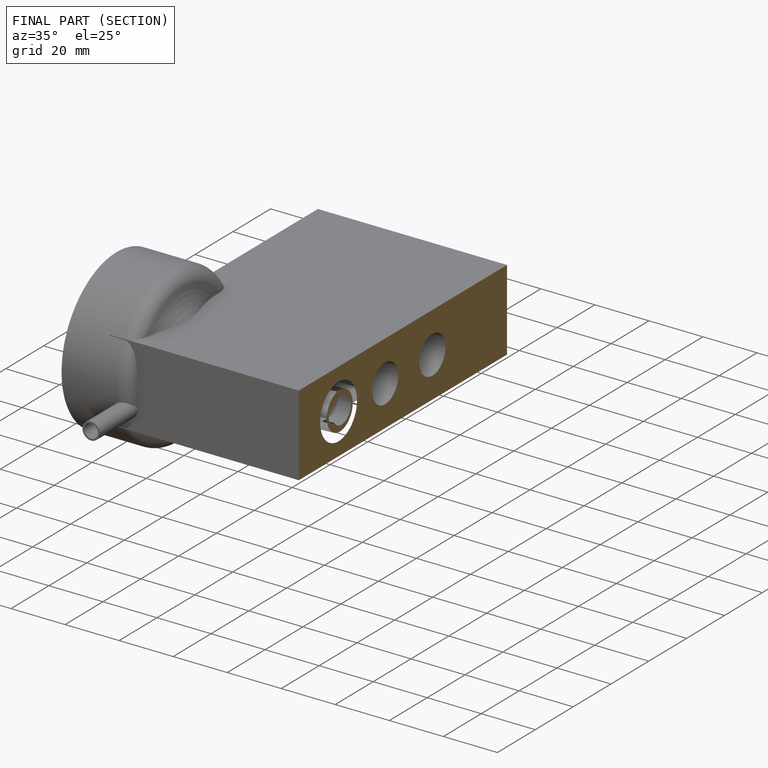
[diagram: finished part — half-section view (interior)]
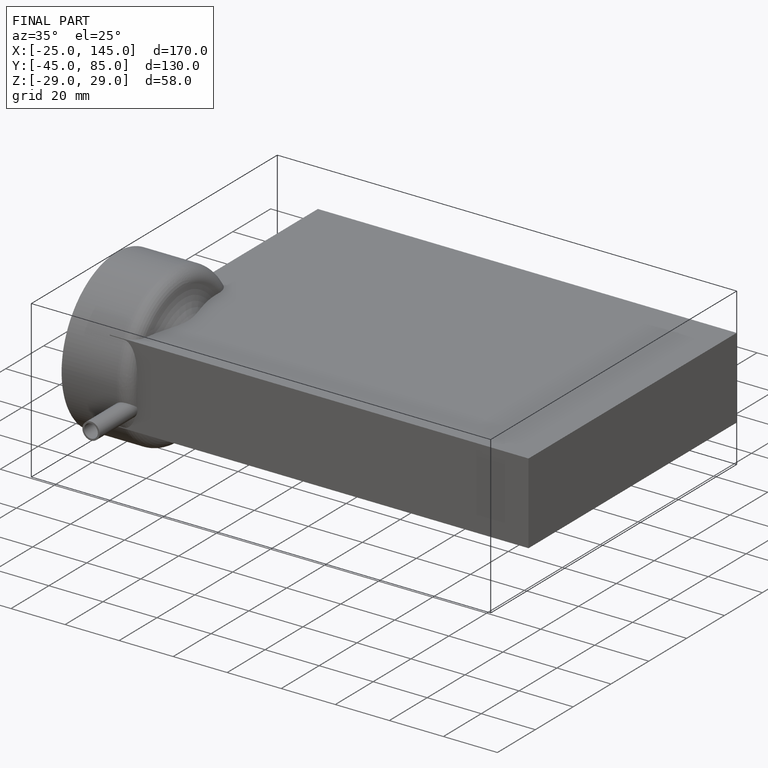
[diagram: finished part — iso view with bounding-box wireframe]
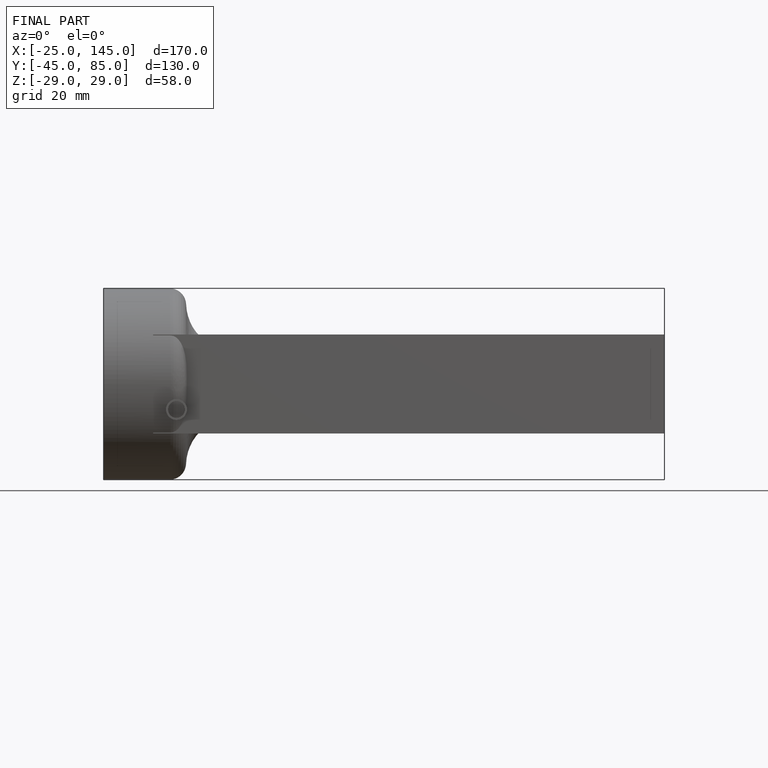
[diagram: finished part — front view with bounding-box wireframe]
